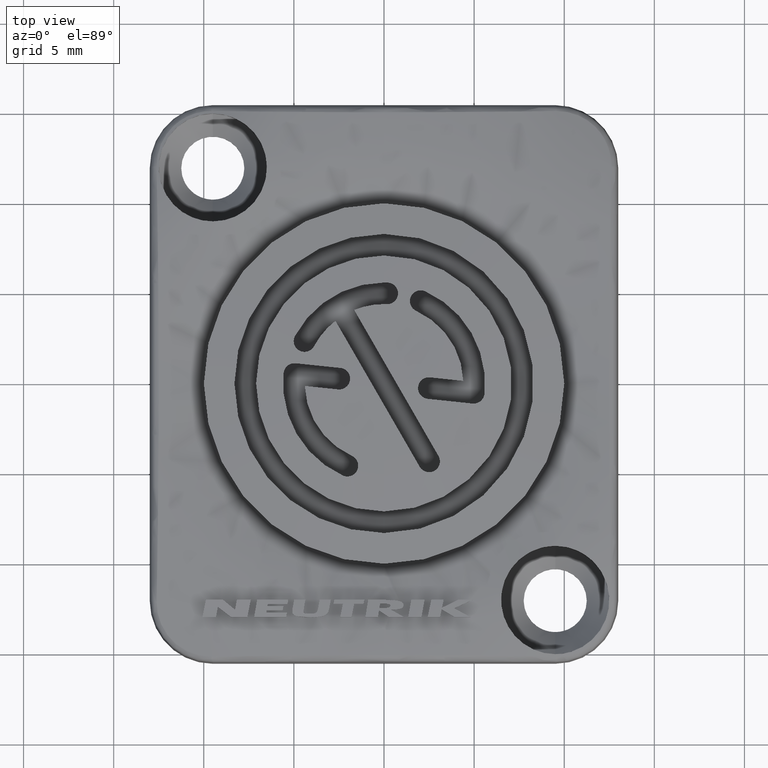
[diagram: clean part render]
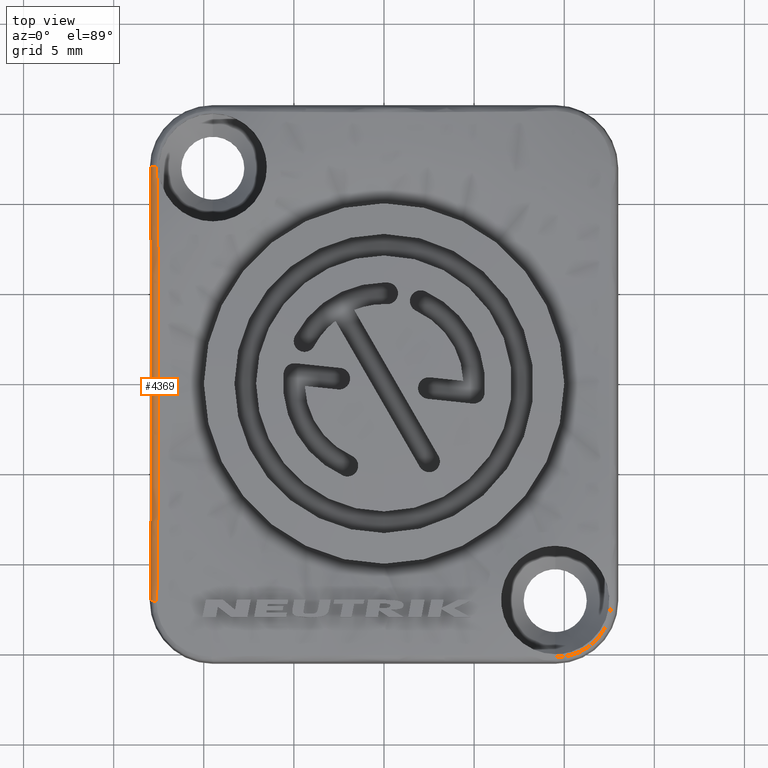
[diagram: same view with one face highlighted and labeled with its STEP entity id]
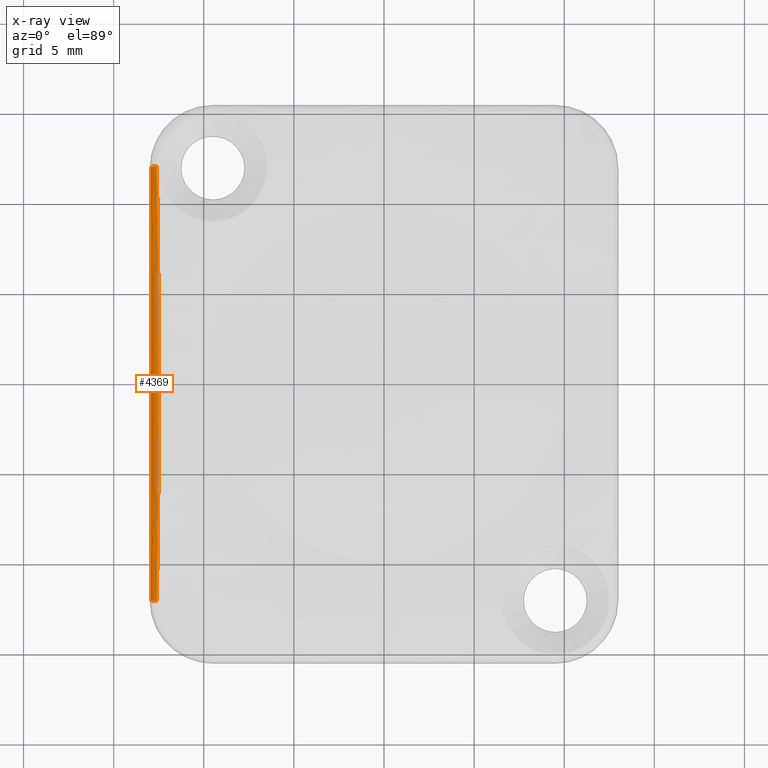
[diagram: x-ray of the same camera — body ghosted, the highlighted face saturated]
A machine part, top view. The second image highlights one B-rep face of the part: STEP entity #4369.
The next image is the same camera in x-ray: the body ghosted, the highlighted face saturated — about 0% of this face is hidden behind the body in this view.
In plain terms, the highlighted face is a freeform B-spline surface patch.
Its self-contained STEP definition (entity closure, byte-faithful):
#436=CARTESIAN_POINT('',(-1.293715133125E1,-1.199999999984E1,1.799703366323E0));
#442=CARTESIAN_POINT('',(-1.293715133125E1,-1.199999999984E1,1.799703366323E0));
#443=CARTESIAN_POINT('',(-1.293623277850E1,-1.186144682143E1,1.826007275652E0));
#444=CARTESIAN_POINT('',(-1.293446991343E1,-1.158122330494E1,1.876557983507E0));
#445=CARTESIAN_POINT('',(-1.293207760972E1,-1.115949788047E1,1.945036923112E0));
#446=CARTESIAN_POINT('',(-1.292981618170E1,-1.071251885884E1,2.009803164346E0));
#447=CARTESIAN_POINT('',(-1.292765995960E1,-1.022644671771E1,2.071547299408E0));
#448=CARTESIAN_POINT('',(-1.292560452021E1,-9.684589239696E0,2.130407914975E0));
#449=CARTESIAN_POINT('',(-1.292368716216E1,-9.070984158288E0,2.185313722836E0));
#450=CARTESIAN_POINT('',(-1.292198010468E1,-8.369186393086E0,2.234197491522E0));
#451=CARTESIAN_POINT('',(-1.292058211741E1,-7.563394125188E0,2.274230598873E0));
#452=CARTESIAN_POINT('',(-1.291961611146E1,-6.639213640713E0,2.301893392623E0));
#453=CARTESIAN_POINT('',(-1.291918601012E1,-5.661581899250E0,2.314209882865E0));
#454=CARTESIAN_POINT('',(-1.291917917713E1,-4.700197682490E0,2.314405554255E0));
#455=CARTESIAN_POINT('',(-1.291940120540E1,-3.803852062074E0,2.308047496381E0));
#456=CARTESIAN_POINT('',(-1.291966149828E1,-3.058240565874E0,2.300593683597E0));
#457=CARTESIAN_POINT('',(-1.291996618077E1,-2.220654649053E0,2.291868718762E0));
#458=CARTESIAN_POINT('',(-1.292022062825E1,-1.376596970098E0,2.284582296283E0));
#459=CARTESIAN_POINT('',(-1.292036742439E1,-5.552822116323E-1,
2.280378604709E0));
#460=CARTESIAN_POINT('',(-1.292039062858E1,2.573448004216E-1,2.279714123648E0));
#461=CARTESIAN_POINT('',(-1.292028830211E1,1.076367372849E0,2.282644370356E0));
#462=CARTESIAN_POINT('',(-1.292005980295E1,1.944633681476E0,2.289187730146E0));
#463=CARTESIAN_POINT('',(-1.291974180262E1,2.841038410546E0,2.298294068300E0));
#464=CARTESIAN_POINT('',(-1.291944642315E1,3.659544111074E0,2.306752629454E0));
#465=CARTESIAN_POINT('',(-1.291921123473E1,4.533146271245E0,2.313487544697E0));
#466=CARTESIAN_POINT('',(-1.291916741707E1,5.368720841461E0,2.314742318176E0));
#467=CARTESIAN_POINT('',(-1.291936359E1,6.125403511264E0,2.309124660553E0));
#468=CARTESIAN_POINT('',(-1.291981457260E1,6.833227108036E0,2.296210208446E0));
#469=CARTESIAN_POINT('',(-1.292056360793E1,7.521332473634E0,2.274760643696E0));
#470=CARTESIAN_POINT('',(-1.292165919789E1,8.198969234125E0,2.243387049573E0));
#471=CARTESIAN_POINT('',(-1.292315192612E1,8.869855795423E0,2.200640915355E0));
#472=CARTESIAN_POINT('',(-1.292501162461E1,9.509188972215E0,2.147386083273E0));
#473=CARTESIAN_POINT('',(-1.292703780425E1,1.007154140393E1,2.089364020379E0));
#474=CARTESIAN_POINT('',(-1.292908452091E1,1.055378092209E1,2.030753237135E0));
#475=CARTESIAN_POINT('',(-1.293110819576E1,1.097254421906E1,1.972804587545E0));
#476=CARTESIAN_POINT('',(-1.293310295818E1,1.134344945889E1,1.915675287817E0));
#477=CARTESIAN_POINT('',(-1.293508188186E1,1.167950438018E1,1.859031623442E0));
#478=CARTESIAN_POINT('',(-1.293645770603E1,1.189535338900E1,1.819570238268E0));
#479=CARTESIAN_POINT('',(-1.293715147232E1,1.199999999971E1,1.799703371273E0));
#485=CARTESIAN_POINT('',(-1.253739664143E1,-1.199999999628E1,1.785743606456E0));
#486=DIRECTION('',(6.513140319365E-3,9.824311053645E-1,1.865119358525E-1));
#487=DIRECTION('',(-9.993908254063E-1,-8.778622273553E-9,3.489954288661E-2));
#488=AXIS2_PLACEMENT_3D('',#485,#486,#487);
#490=CARTESIAN_POINT('',(-1.253739068887E1,1.200000001957E1,1.785744085536E0));
#491=DIRECTION('',(-6.512625389271E-3,9.824312280716E-1,-1.865113074865E-1));
#492=DIRECTION('',(-9.993908867981E-1,1.761049325463E-7,3.489778481460E-2));
#493=AXIS2_PLACEMENT_3D('',#490,#491,#492);
#1929=CARTESIAN_POINT('',(-1.261341517536E1,-1.207276011448E1,
2.171654152199E0));
#1931=CARTESIAN_POINT('',(-1.261341517536E1,-1.207276011448E1,
2.171654152199E0));
#1932=CARTESIAN_POINT('',(-1.261100475603E1,-1.193197008795E1,
2.198673696545E0));
#1933=CARTESIAN_POINT('',(-1.260619912870E1,-1.164719524834E1,
2.250619539404E0));
#1934=CARTESIAN_POINT('',(-1.259917426448E1,-1.121896119245E1,
2.320971445279E0));
#1935=CARTESIAN_POINT('',(-1.259194334142E1,-1.076533766592E1,
2.387513868248E0));
#1936=CARTESIAN_POINT('',(-1.258432491262E1,-1.027239251713E1,
2.450950048701E0));
#1937=CARTESIAN_POINT('',(-1.257612381110E1,-9.723316718322E0,
2.511423939634E0));
#1938=CARTESIAN_POINT('',(-1.256720075895E1,-9.102135297470E0,
2.567834232040E0));
#1939=CARTESIAN_POINT('',(-1.255746670713E1,-8.392498654741E0,
2.618057086500E0));
#1940=CARTESIAN_POINT('',(-1.254691404220E1,-7.578822669747E0,
2.659186441810E0));
#1941=CARTESIAN_POINT('',(-1.253568673335E1,-6.647303428673E0,
2.687603091267E0));
#1942=CARTESIAN_POINT('',(-1.252493761592E1,-5.663860574203E0,
2.700256304275E0));
#1943=CARTESIAN_POINT('',(-1.251561559832E1,-4.698639246642E0,
2.700458161907E0));
#1944=CARTESIAN_POINT('',(-1.250822984556E1,-3.800338622879E0,
2.693926633817E0));
#1945=CARTESIAN_POINT('',(-1.250306696397E1,-3.054026835987E0,
2.686267658705E0));
#1946=CARTESIAN_POINT('',(-1.249842339973E1,-2.216724296623E0,
2.677304013355E0));
#1947=CARTESIAN_POINT('',(-1.249520611410E1,-1.373781752216E0,
2.669817755959E0));
#1948=CARTESIAN_POINT('',(-1.249350094872E1,-5.540626962960E-1,
2.665498776010E0));
#1949=CARTESIAN_POINT('',(-1.249324061122E1,2.567772829193E-1,
2.664816069425E0));
#1950=CARTESIAN_POINT('',(-1.249440829986E1,1.074097493727E0,2.667826699418E0));
#1951=CARTESIAN_POINT('',(-1.249718175119E1,1.940989358535E0,2.674549608115E0));
#1952=CARTESIAN_POINT('',(-1.250170668243E1,2.836771013094E0,2.683904912707E0));
#1953=CARTESIAN_POINT('',(-1.250713619288E1,3.655789393955E0,2.692595916348E0));
#1954=CARTESIAN_POINT('',(-1.251416450857E1,4.531043533428E0,2.699514436556E0));
#1955=CARTESIAN_POINT('',(-1.252203085034E1,5.369621728394E0,2.700804003847E0));
#1956=CARTESIAN_POINT('',(-1.252997513853E1,6.130297267290E0,2.695032868732E0));
#1957=CARTESIAN_POINT('',(-1.253804292616E1,6.842883565314E0,2.681764569012E0));
#1958=CARTESIAN_POINT('',(-1.254643695975E1,7.536567107697E0,2.659727774793E0));
#1959=CARTESIAN_POINT('',(-1.255520645655E1,8.220609763007E0,2.627495206680E0));
#1960=CARTESIAN_POINT('',(-1.256436400940E1,8.898675937694E0,2.583580947552E0));
#1961=CARTESIAN_POINT('',(-1.257353147191E1,9.545634521999E0,2.528871727615E0));
#1962=CARTESIAN_POINT('',(-1.258195047542E1,1.011534886104E1,2.469258525671E0));
#1963=CARTESIAN_POINT('',(-1.258943267488E1,1.060430704968E1,2.409040029316E0));
#1964=CARTESIAN_POINT('',(-1.259613073266E1,1.102918508639E1,2.349503431250E0));
#1965=CARTESIAN_POINT('',(-1.260222456065E1,1.140573379152E1,2.290806545058E0));
#1966=CARTESIAN_POINT('',(-1.260787855091E1,1.174703138423E1,2.232616088216E0));
#1967=CARTESIAN_POINT('',(-1.261159486249E1,1.196643736227E1,2.192058993039E0));
#1968=CARTESIAN_POINT('',(-1.261341518128E1,1.207276012014E1,2.171654182223E0));
#3667=VERTEX_POINT('',#436);
#3668=VERTEX_POINT('',#1929);
#3669=VERTEX_POINT('',#479);
#3670=VERTEX_POINT('',#1968);
#4208=CARTESIAN_POINT('',(-1.293715297230E1,-1.199999999615E1,
1.799703403319E0));
#4209=CARTESIAN_POINT('',(-1.293640678912E1,-1.188744679622E1,
1.821071293971E0));
#4210=CARTESIAN_POINT('',(-1.293478329722E1,-1.163227904247E1,
1.867562019006E0));
#4211=CARTESIAN_POINT('',(-1.293243994539E1,-1.122682223306E1,
1.934666835749E0));
#4212=CARTESIAN_POINT('',(-1.293009634123E1,-1.077139955523E1,
2.001778878001E0));
#4213=CARTESIAN_POINT('',(-1.292787246794E1,-1.027809190701E1,
2.065462276851E0));
#4214=CARTESIAN_POINT('',(-1.292576173157E1,-9.730180555827E0,
2.125905858107E0));
#4215=CARTESIAN_POINT('',(-1.292379711614E1,-9.110867730104E0,
2.182165083242E0));
#4216=CARTESIAN_POINT('',(-1.292204933765E1,-8.403317260129E0,
2.232214910515E0));
#4217=CARTESIAN_POINT('',(-1.292062602301E1,-7.594509126422E0,
2.272973309087E0));
#4218=CARTESIAN_POINT('',(-1.291965937868E1,-6.694083220135E0,
2.300654380897E0));
#4219=CARTESIAN_POINT('',(-1.291920344035E1,-5.739840638532E0,
2.313710746563E0));
#4220=CARTESIAN_POINT('',(-1.291916767959E1,-4.791943750609E0,
2.314734800660E0));
#4221=CARTESIAN_POINT('',(-1.291936928286E1,-3.903666120944E0,
2.308961638371E0));
#4222=CARTESIAN_POINT('',(-1.291965988231E1,-3.060470056669E0,
2.300639959020E0));
#4223=CARTESIAN_POINT('',(-1.291996182299E1,-2.233418901293E0,
2.291993509038E0));
#4224=CARTESIAN_POINT('',(-1.292021657345E1,-1.394133839296E0,
2.284698410555E0));
#4225=CARTESIAN_POINT('',(-1.292036801117E1,-5.573040307052E-1,
2.280361801672E0));
#4226=CARTESIAN_POINT('',(-1.292039084183E1,2.753772765560E-1,
2.279708017106E0));
#4227=CARTESIAN_POINT('',(-1.292027971847E1,1.122205802140E0,2.282890173740E0));
#4228=CARTESIAN_POINT('',(-1.292004487062E1,1.990251768306E0,2.289615336251E0));
#4229=CARTESIAN_POINT('',(-1.291973325186E1,2.862708960239E0,2.298538930069E0));
#4230=CARTESIAN_POINT('',(-1.291942221656E1,3.732500429337E0,2.307445815670E0));
#4231=CARTESIAN_POINT('',(-1.291920334472E1,4.584157369080E0,2.313713484995E0));
#4232=CARTESIAN_POINT('',(-1.291917041394E1,5.407343782655E0,2.314656499292E0));
#4233=CARTESIAN_POINT('',(-1.291938583380E1,6.180220451455E0,2.308487681449E0));
#4234=CARTESIAN_POINT('',(-1.291987688506E1,6.906975601342E0,2.294425813202E0));
#4235=CARTESIAN_POINT('',(-1.292067950650E1,7.607097434289E0,2.271441742341E0));
#4236=CARTESIAN_POINT('',(-1.292183942163E1,8.291864663267E0,2.238226119057E0));
#4237=CARTESIAN_POINT('',(-1.292337440993E1,8.954731802436E0,2.194269805133E0));
#4238=CARTESIAN_POINT('',(-1.292522697149E1,9.574114378626E0,2.141219383242E0));
#4239=CARTESIAN_POINT('',(-1.292726361208E1,1.012868111739E1,2.082897627433E0));
#4240=CARTESIAN_POINT('',(-1.292934762960E1,1.061143913634E1,2.023219173681E0));
#4241=CARTESIAN_POINT('',(-1.293141467440E1,1.103222716779E1,1.964026755451E0));
#4242=CARTESIAN_POINT('',(-1.293346120584E1,1.140670787508E1,1.905421762580E0));
#4243=CARTESIAN_POINT('',(-1.293536220466E1,1.172421022193E1,1.850984279129E0));
#4244=CARTESIAN_POINT('',(-1.293661237127E1,1.191845664836E1,1.815184191354E0));
#4245=CARTESIAN_POINT('',(-1.293715297219E1,1.200000003676E1,1.799703406495E0));
#4246=CARTESIAN_POINT('',(-1.292890578747E1,-1.204489063517E1,
2.035871908215E0));
#4247=CARTESIAN_POINT('',(-1.292815187603E1,-1.193117171732E1,
2.057461107142E0));
#4248=CARTESIAN_POINT('',(-1.292651184941E1,-1.167340339417E1,
2.104425324668E0));
#4249=CARTESIAN_POINT('',(-1.292414554439E1,-1.126397026465E1,
2.172187434637E0));
#4250=CARTESIAN_POINT('',(-1.292178005291E1,-1.080428774015E1,
2.239926247796E0));
#4251=CARTESIAN_POINT('',(-1.291953652730E1,-1.030661149136E1,
2.304172415486E0));
#4252=CARTESIAN_POINT('',(-1.291740834290E1,-9.754156662986E0,
2.365115642932E0));
#4253=CARTESIAN_POINT('',(-1.291542879259E1,-9.130112130454E0,
2.421802547110E0));
#4254=CARTESIAN_POINT('',(-1.291366910369E1,-8.417697828698E0,
2.472193443980E0));
#4255=CARTESIAN_POINT('',(-1.291223743518E1,-7.604062704031E0,
2.513191066030E0));
#4256=CARTESIAN_POINT('',(-1.291126621859E1,-6.699220062341E0,
2.541003070547E0));
#4257=CARTESIAN_POINT('',(-1.291080873644E1,-5.741425055769E0,
2.554103645095E0));
#4258=CARTESIAN_POINT('',(-1.291077298268E1,-4.791133955516E0,
2.555127498927E0));
#4259=CARTESIAN_POINT('',(-1.291097491614E1,-3.901579027766E0,
2.549344881058E0));
#4260=CARTESIAN_POINT('',(-1.291126568390E1,-3.057923039121E0,
2.541018381922E0));
#4261=CARTESIAN_POINT('',(-1.291156756294E1,-2.231031763933E0,
2.532373697186E0));
#4262=CARTESIAN_POINT('',(-1.291182210198E1,-1.392408483041E0,2.525084653E0));
#4263=CARTESIAN_POINT('',(-1.291197335319E1,-5.565633359740E-1,
2.520753384836E0));
#4264=CARTESIAN_POINT('',(-1.291199615205E1,2.750076379063E-1,
2.520100510982E0));
#4265=CARTESIAN_POINT('',(-1.291188517472E1,1.120772342425E0,2.523278485964E0));
#4266=CARTESIAN_POINT('',(-1.291165055888E1,1.988004858830E0,2.529997004601E0));
#4267=CARTESIAN_POINT('',(-1.291133906372E1,2.860136357799E0,2.538917058860E0));
#4268=CARTESIAN_POINT('',(-1.291102790293E1,3.730256835465E0,2.547827538154E0));
#4269=CARTESIAN_POINT('',(-1.291080872247E1,4.582989841326E0,2.554104045059E0));
#4270=CARTESIAN_POINT('',(-1.291077566201E1,5.408020923911E0,2.555050772896E0));
#4271=CARTESIAN_POINT('',(-1.291099170834E1,6.183380630643E0,2.548864015600E0));
#4272=CARTESIAN_POINT('',(-1.291148471950E1,6.913140558810E0,2.534746023112E0));
#4273=CARTESIAN_POINT('',(-1.291229128990E1,7.616774200280E0,2.511648868846E0));
#4274=CARTESIAN_POINT('',(-1.291345792736E1,8.305559643546E0,2.478240742940E0));
#4275=CARTESIAN_POINT('',(-1.291500309374E1,8.972859715289E0,2.433992967273E0));
#4276=CARTESIAN_POINT('',(-1.291686938318E1,9.596858169786E0,2.380549430171E0));
#4277=CARTESIAN_POINT('',(-1.291892251823E1,1.015593194117E1,2.321755334651E0));
#4278=CARTESIAN_POINT('',(-1.292102462106E1,1.064288834884E1,2.261558985573E0));
#4279=CARTESIAN_POINT('',(-1.292311060536E1,1.106753726545E1,2.201824210861E0));
#4280=CARTESIAN_POINT('',(-1.292517673433E1,1.144560746828E1,2.142658018514E0));
#4281=CARTESIAN_POINT('',(-1.292709662718E1,1.176626778518E1,2.087679480564E0));
#4282=CARTESIAN_POINT('',(-1.292835958741E1,1.196250273934E1,2.051513031435E0));
#4283=CARTESIAN_POINT('',(-1.292890578736E1,1.204489067603E1,2.035871911382E0));
#4284=CARTESIAN_POINT('',(-1.275038719985E1,-1.207610111049E1,
2.194035647289E0));
#4285=CARTESIAN_POINT('',(-1.274962791530E1,-1.196157172054E1,
2.215778712069E0));
#4286=CARTESIAN_POINT('',(-1.274797639282E1,-1.170199533654E1,
2.263072127975E0));
#4287=CARTESIAN_POINT('',(-1.274559412947E1,-1.128979764757E1,
2.331291224845E0));
#4288=CARTESIAN_POINT('',(-1.274321342070E1,-1.082715344014E1,
2.399465804087E0));
#4289=CARTESIAN_POINT('',(-1.274095623170E1,-1.032643989663E1,
2.464103240054E0));
#4290=CARTESIAN_POINT('',(-1.273881591646E1,-9.770826189577E0,
2.525393849391E0));
#4291=CARTESIAN_POINT('',(-1.273682598258E1,-9.143491910634E0,
2.582378099887E0));
#4292=CARTESIAN_POINT('',(-1.273505801290E1,-8.427696001820E0,
2.633006127359E0));
#4293=CARTESIAN_POINT('',(-1.273362053632E1,-7.610704883887E0,
2.674170070910E0));
#4294=CARTESIAN_POINT('',(-1.273264614082E1,-6.702791481469E0,
2.702073107145E0));
#4295=CARTESIAN_POINT('',(-1.273218758534E1,-5.742526630979E0,
2.715204418173E0));
#4296=CARTESIAN_POINT('',(-1.273215183644E1,-4.790570940813E0,
2.716228132770E0));
#4297=CARTESIAN_POINT('',(-1.273235399947E1,-3.900127964213E0,
2.710438940856E0));
#4298=CARTESIAN_POINT('',(-1.273264488425E1,-3.056152210502E0,
2.702109090736E0));
#4299=CARTESIAN_POINT('',(-1.273294672043E1,-2.229372092934E0,
2.693465633297E0));
#4300=CARTESIAN_POINT('',(-1.273320111247E1,-1.391208919168E0,
2.686180798396E0));
#4301=CARTESIAN_POINT('',(-1.273335223402E1,-5.560483636962E-1,
2.681853243398E0));
#4302=CARTESIAN_POINT('',(-1.273337501077E1,2.747506445061E-1,
2.681201002722E0));
#4303=CARTESIAN_POINT('',(-1.273326413496E1,1.119775721302E0,2.684376070385E0));
#4304=CARTESIAN_POINT('',(-1.273302968043E1,1.986442682076E0,2.691089969830E0));
#4305=CARTESIAN_POINT('',(-1.273271827121E1,2.858347741135E0,2.700007563190E0));
#4306=CARTESIAN_POINT('',(-1.273240702316E1,3.728696963904E0,2.708920541021E0));
#4307=CARTESIAN_POINT('',(-1.273218762815E1,4.582178110931E0,2.715203192304E0));
#4308=CARTESIAN_POINT('',(-1.273215447752E1,5.408491710269E0,2.716152502002E0));
#4309=CARTESIAN_POINT('',(-1.273237095940E1,6.185577763425E0,2.709953272196E0));
#4310=CARTESIAN_POINT('',(-1.273286533319E1,6.917426780997E0,2.695796259007E0));
#4311=CARTESIAN_POINT('',(-1.273367464913E1,7.623502027568E0,2.672620482853E0));
#4312=CARTESIAN_POINT('',(-1.273484596034E1,8.315081157460E0,2.639078518389E0));
#4313=CARTESIAN_POINT('',(-1.273639820307E1,8.985463251107E0,2.594628102268E0));
#4314=CARTESIAN_POINT('',(-1.273827403690E1,9.612670921582E0,2.540911249551E0));
#4315=CARTESIAN_POINT('',(-1.274033863983E1,1.017487823335E1,2.481788757127E0));
#4316=CARTESIAN_POINT('',(-1.274245331657E1,1.066475359497E1,2.421232338340E0));
#4317=CARTESIAN_POINT('',(-1.274455246867E1,1.109208681422E1,2.361120487160E0));
#4318=CARTESIAN_POINT('',(-1.274663222292E1,1.147265263449E1,2.301564117646E0));
#4319=CARTESIAN_POINT('',(-1.274856525197E1,1.179550854825E1,2.246209408439E0));
#4320=CARTESIAN_POINT('',(-1.274983710704E1,1.199312603777E1,2.209788244468E0));
#4321=CARTESIAN_POINT('',(-1.275038719974E1,1.207610115153E1,2.194035650448E0));
#4322=CARTESIAN_POINT('',(-1.251040223343E1,-1.207460899671E1,
2.177795642410E0));
#4323=CARTESIAN_POINT('',(-1.250964320576E1,-1.196011835390E1,
2.199531351154E0));
#4324=CARTESIAN_POINT('',(-1.250799223288E1,-1.170062840987E1,
2.246809028709E0));
#4325=CARTESIAN_POINT('',(-1.250561073246E1,-1.128856288925E1,
2.315006277900E0));
#4326=CARTESIAN_POINT('',(-1.250323075120E1,-1.082606027429E1,
2.383160023989E0));
#4327=CARTESIAN_POINT('',(-1.250097421542E1,-1.032549193809E1,
2.447778754161E0));
#4328=CARTESIAN_POINT('',(-1.249883448013E1,-9.770029251048E0,
2.509052755827E0));
#4329=CARTESIAN_POINT('',(-1.249684504268E1,-9.142852248657E0,
2.566022790758E0));
#4330=CARTESIAN_POINT('',(-1.249507746889E1,-8.427218008079E0,
2.616639481464E0));
#4331=CARTESIAN_POINT('',(-1.249364026998E1,-7.610387333834E0,
2.657795473499E0));
#4332=CARTESIAN_POINT('',(-1.249266602646E1,-6.702620738678E0,
2.685694157680E0));
#4333=CARTESIAN_POINT('',(-1.249220752229E1,-5.742473966752E0,
2.698823999255E0));
#4334=CARTESIAN_POINT('',(-1.249217177315E1,-4.790597857480E0,
2.699847720509E0));
#4335=CARTESIAN_POINT('',(-1.249237392521E1,-3.900197336816E0,
2.694058842887E0));
#4336=CARTESIAN_POINT('',(-1.249266480439E1,-3.056236870468E0,
2.685729152971E0));
#4337=CARTESIAN_POINT('',(-1.249296664263E1,-2.229451438665E0,
2.677085636858E0));
#4338=CARTESIAN_POINT('',(-1.249322104170E1,-1.391266268048E0,
2.669800600718E0));
#4339=CARTESIAN_POINT('',(-1.249337216944E1,-5.560729835465E-1,
2.665472868201E0));
#4340=CARTESIAN_POINT('',(-1.249339494725E1,2.747629308744E-1,
2.664820597254E0));
#4341=CARTESIAN_POINT('',(-1.249328406659E1,1.119823367873E0,2.667995803910E0));
#4342=CARTESIAN_POINT('',(-1.249304960434E1,1.986517366791E0,2.674709924190E0));
#4343=CARTESIAN_POINT('',(-1.249273819101E1,2.858433251514E0,2.683627635201E0));
#4344=CARTESIAN_POINT('',(-1.249242694714E1,3.728771538413E0,2.692540493582E0));
#4345=CARTESIAN_POINT('',(-1.249220756238E1,4.582216918225E0,2.698822851113E0));
#4346=CARTESIAN_POINT('',(-1.249217441606E1,5.408469202864E0,2.699772037378E0));
#4347=CARTESIAN_POINT('',(-1.249239087712E1,6.185472722664E0,2.693573403859E0));
#4348=CARTESIAN_POINT('',(-1.249288518577E1,6.917221864823E0,2.679418256176E0));
#4349=CARTESIAN_POINT('',(-1.249369437044E1,7.623180382874E0,2.656246238785E0));
#4350=CARTESIAN_POINT('',(-1.249486545821E1,8.314625951893E0,2.622710672890E0));
#4351=CARTESIAN_POINT('',(-1.249641736264E1,8.984860699904E0,2.578269944626E0));
#4352=CARTESIAN_POINT('',(-1.249829274017E1,9.611914943835E0,2.524566158611E0));
#4353=CARTESIAN_POINT('',(-1.250035679484E1,1.017397244697E1,2.465459366222E0));
#4354=CARTESIAN_POINT('',(-1.250247087045E1,1.066370825892E1,2.404920161687E0));
#4355=CARTESIAN_POINT('',(-1.250456939302E1,1.109091314674E1,2.344826337819E0));
#4356=CARTESIAN_POINT('',(-1.250664849587E1,1.147135965626E1,2.285288621937E0));
#4357=CARTESIAN_POINT('',(-1.250858089690E1,1.179411060269E1,2.229951896766E0));
#4358=CARTESIAN_POINT('',(-1.250985232672E1,1.199166199581E1,2.193542910230E0));
#4359=CARTESIAN_POINT('',(-1.251040223332E1,1.207460903774E1,2.177795645569E0));
#4360=(BOUNDED_SURFACE()B_SPLINE_SURFACE(3,3,((#4208,#4209,#4210,#4211,#4212,
#4213,#4214,#4215,#4216,#4217,#4218,#4219,#4220,#4221,#4222,#4223,#4224,#4225,
#4226,#4227,#4228,#4229,#4230,#4231,#4232,#4233,#4234,#4235,#4236,#4237,#4238,
#4239,#4240,#4241,#4242,#4243,#4244,#4245),(#4246,#4247,#4248,#4249,#4250,#4251,
#4252,#4253,#4254,#4255,#4256,#4257,#4258,#4259,#4260,#4261,#4262,#4263,#4264,
#4265,#4266,#4267,#4268,#4269,#4270,#4271,#4272,#4273,#4274,#4275,#4276,#4277,
#4278,#4279,#4280,#4281,#4282,#4283),(#4284,#4285,#4286,#4287,#4288,#4289,#4290,
#4291,#4292,#4293,#4294,#4295,#4296,#4297,#4298,#4299,#4300,#4301,#4302,#4303,
#4304,#4305,#4306,#4307,#4308,#4309,#4310,#4311,#4312,#4313,#4314,#4315,#4316,
#4317,#4318,#4319,#4320,#4321),(#4322,#4323,#4324,#4325,#4326,#4327,#4328,#4329,
#4330,#4331,#4332,#4333,#4334,#4335,#4336,#4337,#4338,#4339,#4340,#4341,#4342,
#4343,#4344,#4345,#4346,#4347,#4348,#4349,#4350,#4351,#4352,#4353,#4354,#4355,
#4356,#4357,#4358,#4359)),.UNSPECIFIED.,.F.,.F.,.F.)B_SPLINE_SURFACE_WITH_KNOTS(
(4,4),(4,1,1,1,1,1,1,1,1,1,1,1,1,1,1,1,1,1,1,1,1,1,1,1,1,1,1,1,1,1,1,1,1,1,1,4),
(0.E0,1.E0),(3.610911513400E-3,1.784773373892E-2,3.583866282918E-2,
5.466587157306E-2,7.502204826270E-2,9.759956274332E-2,1.230904270814E-1,
1.521863097864E-1,1.855791560079E-1,2.234880041688E-1,2.638034549635E-1,
3.037480388440E-1,3.407846906934E-1,3.736595965224E-1,4.079801254101E-1,
4.429794617354E-1,4.773296811182E-1,5.113218364559E-1,5.457984357353E-1,
5.819007927654E-1,6.185347110945E-1,6.535926936093E-1,6.894108670319E-1,
7.238523298899E-1,7.554416830469E-1,7.850892293927E-1,8.138802911440E-1,
8.422421910949E-1,8.700788235704E-1,8.962713587264E-1,9.193722374469E-1,
9.392904147948E-1,9.566654866020E-1,9.721442138766E-1,9.863734206274E-1,
9.966878563527E-1),.UNSPECIFIED.)GEOMETRIC_REPRESENTATION_ITEM()RATIONAL_B_SPLINE_SURFACE(((1.179762990166E0,1.179762990166E0,1.179762990166E0,1.179762990166E0,
1.179762990166E0,1.179762990166E0,1.179762990166E0,1.179762990166E0,
1.179762990166E0,1.179762990166E0,1.179762990166E0,1.179762990166E0,
1.179762990166E0,1.179762990166E0,1.179762990166E0,1.179762990166E0,
1.179762990166E0,1.179762990166E0,1.179762990166E0,1.179762990166E0,
1.179762990166E0,1.179762990166E0,1.179762990166E0,1.179762990166E0,
1.179762990166E0,1.179762990166E0,1.179762990166E0,1.179762990166E0,
1.179762990166E0,1.179762990166E0,1.179762990166E0,1.179762990166E0,
1.179762990166E0,1.179762990166E0,1.179762990166E0,1.179762990166E0,
1.179762990166E0,1.179762990166E0),(9.400790032779E-1,9.400790032779E-1,
9.400790032779E-1,9.400790032779E-1,9.400790032779E-1,9.400790032779E-1,
9.400790032779E-1,9.400790032779E-1,9.400790032779E-1,9.400790032779E-1,
9.400790032779E-1,9.400790032779E-1,9.400790032779E-1,9.400790032779E-1,
9.400790032779E-1,9.400790032779E-1,9.400790032779E-1,9.400790032779E-1,
9.400790032779E-1,9.400790032779E-1,9.400790032779E-1,9.400790032779E-1,
9.400790032779E-1,9.400790032779E-1,9.400790032779E-1,9.400790032779E-1,
9.400790032779E-1,9.400790032779E-1,9.400790032779E-1,9.400790032779E-1,
9.400790032779E-1,9.400790032779E-1,9.400790032779E-1,9.400790032779E-1,
9.400790032779E-1,9.400790032779E-1,9.400790032779E-1,9.400790032779E-1),(
9.400790032779E-1,9.400790032779E-1,9.400790032779E-1,9.400790032779E-1,
9.400790032779E-1,9.400790032779E-1,9.400790032779E-1,9.400790032779E-1,
9.400790032779E-1,9.400790032779E-1,9.400790032779E-1,9.400790032779E-1,
9.400790032779E-1,9.400790032779E-1,9.400790032779E-1,9.400790032779E-1,
9.400790032779E-1,9.400790032779E-1,9.400790032779E-1,9.400790032779E-1,
9.400790032779E-1,9.400790032779E-1,9.400790032779E-1,9.400790032779E-1,
9.400790032779E-1,9.400790032779E-1,9.400790032779E-1,9.400790032779E-1,
9.400790032779E-1,9.400790032779E-1,9.400790032779E-1,9.400790032779E-1,
9.400790032779E-1,9.400790032779E-1,9.400790032779E-1,9.400790032779E-1,
9.400790032779E-1,9.400790032779E-1),(1.179762990166E0,1.179762990166E0,
1.179762990166E0,1.179762990166E0,1.179762990166E0,1.179762990166E0,
1.179762990166E0,1.179762990166E0,1.179762990166E0,1.179762990166E0,
1.179762990166E0,1.179762990166E0,1.179762990166E0,1.179762990166E0,
1.179762990166E0,1.179762990166E0,1.179762990166E0,1.179762990166E0,
1.179762990166E0,1.179762990166E0,1.179762990166E0,1.179762990166E0,
1.179762990166E0,1.179762990166E0,1.179762990166E0,1.179762990166E0,
1.179762990166E0,1.179762990166E0,1.179762990166E0,1.179762990166E0,
1.179762990166E0,1.179762990166E0,1.179762990166E0,1.179762990166E0,
1.179762990166E0,1.179762990166E0,1.179762990166E0,1.179762990166E0)))REPRESENTATION_ITEM('')SURFACE());
#4361=ORIENTED_EDGE('',*,*,#4199,.T.);
#4363=ORIENTED_EDGE('',*,*,#4362,.T.);
#4365=ORIENTED_EDGE('',*,*,#4364,.F.);
#4366=ORIENTED_EDGE('',*,*,#4173,.F.);
#4367=EDGE_LOOP('',(#4361,#4363,#4365,#4366));
#4368=FACE_OUTER_BOUND('',#4367,.F.);
#480=B_SPLINE_CURVE_WITH_KNOTS('',3,(#442,#443,#444,#445,#446,#447,#448,#449,
#450,#451,#452,#453,#454,#455,#456,#457,#458,#459,#460,#461,#462,#463,#464,#465,
#466,#467,#468,#469,#470,#471,#472,#473,#474,#475,#476,#477,#478,#479),
.UNSPECIFIED.,.F.,.F.,(4,1,1,1,1,1,1,1,1,1,1,1,1,1,1,1,1,1,1,1,1,1,1,1,1,1,1,1,
1,1,1,1,1,1,1,4),(0.E0,2.857142857143E-2,5.714285714286E-2,8.571428571429E-2,
1.142857142857E-1,1.428571428571E-1,1.714285714286E-1,2.E-1,2.285714285714E-1,
2.571428571429E-1,2.857142857143E-1,3.142857142857E-1,3.428571428571E-1,
3.714285714286E-1,4.E-1,4.285714285714E-1,4.571428571429E-1,4.857142857143E-1,
5.142857142857E-1,5.428571428571E-1,5.714285714286E-1,6.E-1,6.285714285714E-1,
6.571428571429E-1,6.857142857143E-1,7.142857142857E-1,7.428571428571E-1,
7.714285714286E-1,8.E-1,8.285714285714E-1,8.571428571429E-1,8.857142857143E-1,
9.142857142857E-1,9.428571428571E-1,9.714285714286E-1,1.E0),.UNSPECIFIED.);
#489=CIRCLE('',#488,4.E-1);
#494=CIRCLE('',#493,3.999999855789E-1);
#1969=B_SPLINE_CURVE_WITH_KNOTS('',3,(#1931,#1932,#1933,#1934,#1935,#1936,#1937,
#1938,#1939,#1940,#1941,#1942,#1943,#1944,#1945,#1946,#1947,#1948,#1949,#1950,
#1951,#1952,#1953,#1954,#1955,#1956,#1957,#1958,#1959,#1960,#1961,#1962,#1963,
#1964,#1965,#1966,#1967,#1968),.UNSPECIFIED.,.F.,.F.,(4,1,1,1,1,1,1,1,1,1,1,1,1,
1,1,1,1,1,1,1,1,1,1,1,1,1,1,1,1,1,1,1,1,1,1,4),(0.E0,2.857142857143E-2,
5.714285714286E-2,8.571428571429E-2,1.142857142857E-1,1.428571428571E-1,
1.714285714286E-1,2.E-1,2.285714285714E-1,2.571428571429E-1,2.857142857143E-1,
3.142857142857E-1,3.428571428571E-1,3.714285714286E-1,4.E-1,4.285714285714E-1,
4.571428571429E-1,4.857142857143E-1,5.142857142857E-1,5.428571428571E-1,
5.714285714286E-1,6.E-1,6.285714285714E-1,6.571428571429E-1,6.857142857143E-1,
7.142857142857E-1,7.428571428571E-1,7.714285714286E-1,8.E-1,8.285714285714E-1,
8.571428571429E-1,8.857142857143E-1,9.142857142857E-1,9.428571428571E-1,
9.714285714286E-1,1.E0),.UNSPECIFIED.);
#4173=EDGE_CURVE('',#3667,#3668,#489,.T.);
#4199=EDGE_CURVE('',#3667,#3669,#480,.T.);
#4362=EDGE_CURVE('',#3669,#3670,#494,.T.);
#4364=EDGE_CURVE('',#3668,#3670,#1969,.T.);
#4369=ADVANCED_FACE('',(#4368),#4360,.T.);